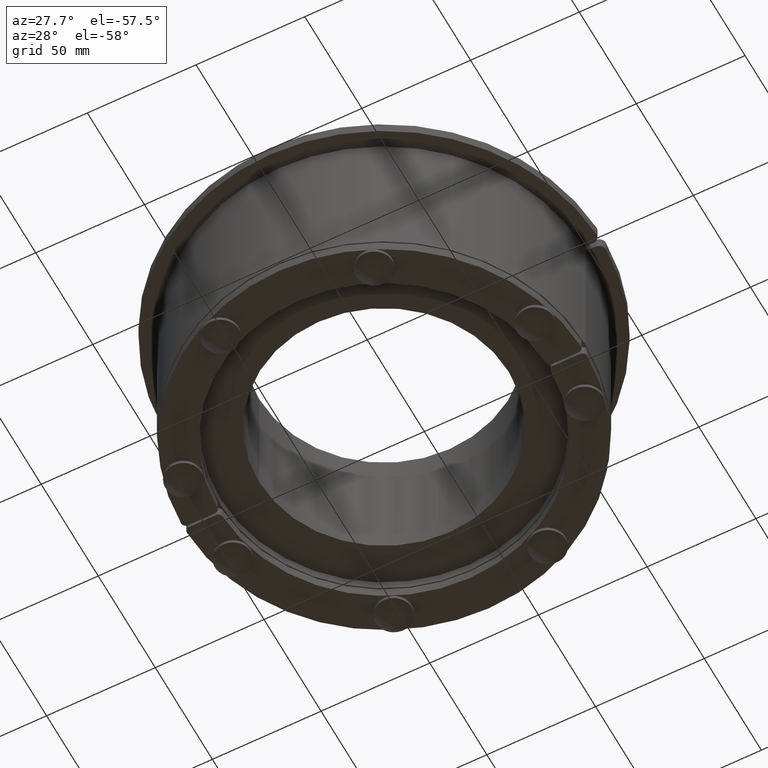
[diagram: clean part render]
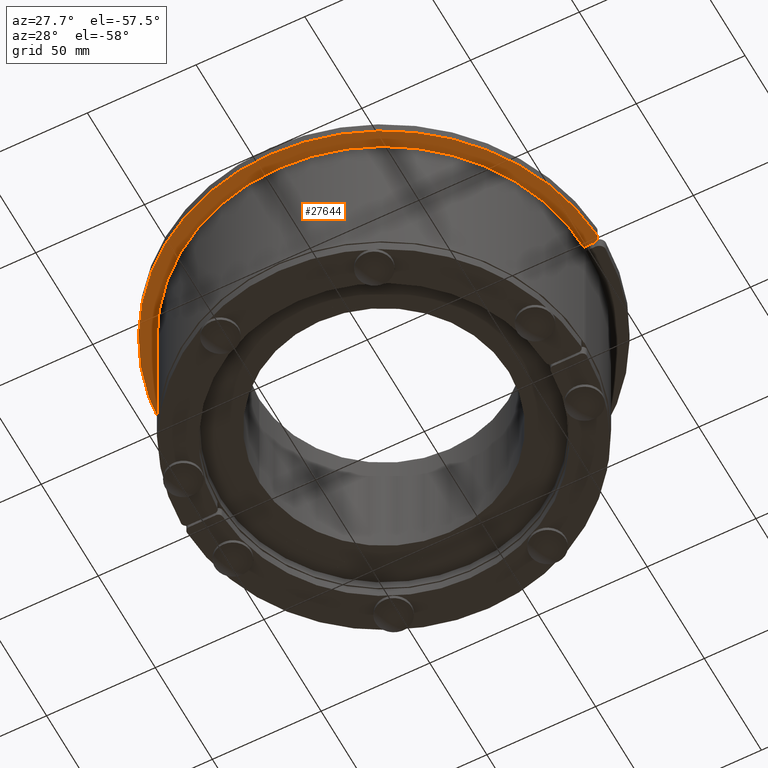
[diagram: same view with one face highlighted and labeled with its STEP entity id]
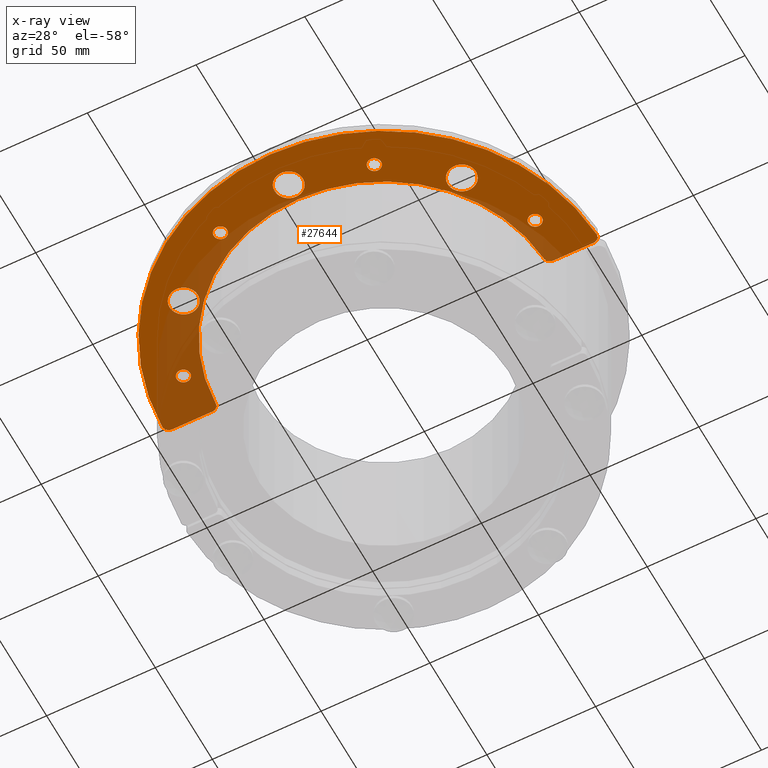
[diagram: x-ray of the same camera — body ghosted, the highlighted face saturated]
A machine part, auxiliary view. The second image highlights one B-rep face of the part: STEP entity #27644.
The next image is the same camera in x-ray: the body ghosted, the highlighted face saturated — about 25% of this face is hidden behind the body in this view.
In plain terms, the highlighted planar face has unit normal (-0, -0, 1).
Its self-contained STEP definition (entity closure, byte-faithful):
#27120=CARTESIAN_POINT('',(6.499999999999998,83.500000000000014,-5.0));
#27121=VERTEX_POINT('',#27120);
#27122=CARTESIAN_POINT('',(-2.185478E-015,83.500000000000014,-5.0));
#27123=DIRECTION('',(0.0,0.0,1.0));
#27124=DIRECTION('',(-1.0,0.0,0.0));
#27125=AXIS2_PLACEMENT_3D('',#27122,#27123,#27124);
#27126=CIRCLE('',#27125,6.5);
#27127=EDGE_CURVE('',#27121,#27121,#27126,.T.);
#27148=CARTESIAN_POINT('',(-57.464711000434683,53.672765408826024,-5.0));
#27149=VERTEX_POINT('',#27148);
#27150=CARTESIAN_POINT('',(-63.96471100043469,53.672765408826024,-5.0));
#27151=DIRECTION('',(0.0,0.0,1.0));
#27152=DIRECTION('',(-1.0,0.0,0.0));
#27153=AXIS2_PLACEMENT_3D('',#27150,#27151,#27152);
#27154=CIRCLE('',#27153,6.5);
#27155=EDGE_CURVE('',#27149,#27149,#27154,.T.);
#27176=CARTESIAN_POINT('',(70.464711000434662,53.672765408826052,-5.0));
#27177=VERTEX_POINT('',#27176);
#27178=CARTESIAN_POINT('',(63.964711000434662,53.672765408826052,-5.0));
#27179=DIRECTION('',(0.0,0.0,1.0));
#27180=DIRECTION('',(-1.0,0.0,0.0));
#27181=AXIS2_PLACEMENT_3D('',#27178,#27179,#27180);
#27182=CIRCLE('',#27181,6.5);
#27183=EDGE_CURVE('',#27177,#27177,#27182,.T.);
#27204=CARTESIAN_POINT('',(-99.914938846914453,4.123711340206175,-5.0));
#27205=VERTEX_POINT('',#27204);
#27206=CARTESIAN_POINT('',(-96.917490681507005,0.999999999999988,-5.0));
#27207=VERTEX_POINT('',#27206);
#27208=CARTESIAN_POINT('',(-96.917490681507005,3.999999999999989,-5.0));
#27209=DIRECTION('',(0.0,0.0,1.0));
#27210=DIRECTION('',(-0.721539019527727,-0.692373774271503,0.0));
#27211=AXIS2_PLACEMENT_3D('',#27208,#27209,#27210);
#27212=CIRCLE('',#27211,3.0);
#27213=EDGE_CURVE('',#27205,#27207,#27212,.T.);
#27256=CARTESIAN_POINT('',(99.914938846914453,4.12371134020617,-5.0));
#27257=VERTEX_POINT('',#27256);
#27264=CARTESIAN_POINT('',(0.0,0.0,-5.0));
#27265=DIRECTION('',(0.0,0.0,-1.0));
#27266=DIRECTION('',(-0.999949998749938,-0.01,0.0));
#27267=AXIS2_PLACEMENT_3D('',#27264,#27265,#27266);
#27268=CIRCLE('',#27267,100.0);
#27269=EDGE_CURVE('',#27205,#27257,#27268,.T.);
#27392=CARTESIAN_POINT('',(-78.398022934255181,0.99999999999999,-5.0));
#27393=VERTEX_POINT('',#27392);
#27394=CARTESIAN_POINT('',(-75.401920146958815,3.84713375796176,-5.0));
#27395=VERTEX_POINT('',#27394);
#27396=CARTESIAN_POINT('',(-78.398022934255181,3.999999999999974,-5.0));
#27397=DIRECTION('',(0.0,0.0,1.0));
#27398=DIRECTION('',(0.688855785338001,-0.724898411507686,0.0));
#27399=AXIS2_PLACEMENT_3D('',#27396,#27397,#27398);
#27400=CIRCLE('',#27399,3.0);
#27401=EDGE_CURVE('',#27393,#27395,#27400,.T.);
#27425=CARTESIAN_POINT('',(75.401920146958801,3.847133757961786,-5.0));
#27426=VERTEX_POINT('',#27425);
#27427=CARTESIAN_POINT('',(0.0,0.0,-5.0));
#27428=DIRECTION('',(0.0,0.0,1.0));
#27429=DIRECTION('',(0.999912280701586,0.013245033112583,0.0));
#27430=AXIS2_PLACEMENT_3D('',#27427,#27428,#27429);
#27431=CIRCLE('',#27430,75.500000000000014);
#27432=EDGE_CURVE('',#27426,#27395,#27431,.T.);
#27449=CARTESIAN_POINT('',(78.398022934255181,1.000000000000002,-5.0));
#27450=VERTEX_POINT('',#27449);
#27451=CARTESIAN_POINT('',(78.398022934255181,4.000000000000003,-5.0));
#27452=DIRECTION('',(0.0,0.0,1.0));
#27453=DIRECTION('',(-0.688855785337999,-0.724898411507688,0.0));
#27454=AXIS2_PLACEMENT_3D('',#27451,#27452,#27453);
#27455=CIRCLE('',#27454,3.0);
#27456=EDGE_CURVE('',#27426,#27450,#27455,.T.);
#27474=CARTESIAN_POINT('',(96.917490681507005,1.000000000000002,-5.0));
#27475=VERTEX_POINT('',#27474);
#27476=CARTESIAN_POINT('',(96.917490681507005,3.999999999999984,-5.0));
#27477=DIRECTION('',(0.0,0.0,1.0));
#27478=DIRECTION('',(0.721539019527729,-0.692373774271501,0.0));
#27479=AXIS2_PLACEMENT_3D('',#27476,#27477,#27478);
#27480=CIRCLE('',#27479,3.0);
#27481=EDGE_CURVE('',#27475,#27257,#27480,.T.);
#27502=CARTESIAN_POINT('',(32.294279420783582,75.903277164319448,-5.0));
#27503=VERTEX_POINT('',#27502);
#27504=CARTESIAN_POINT('',(35.394279420783576,75.903277164319448,-5.0));
#27505=DIRECTION('',(0.0,0.0,1.0));
#27506=DIRECTION('',(-1.0,0.0,0.0));
#27507=AXIS2_PLACEMENT_3D('',#27504,#27505,#27506);
#27508=CIRCLE('',#27507,3.100000000000001);
#27509=EDGE_CURVE('',#27503,#27503,#27508,.T.);
#27522=CARTESIAN_POINT('',(77.796287951709488,21.676095027336117,-5.0));
#27523=VERTEX_POINT('',#27522);
#27524=CARTESIAN_POINT('',(80.896287951709496,21.676095027336117,-5.0));
#27525=DIRECTION('',(0.0,0.0,1.0));
#27526=DIRECTION('',(-1.0,0.0,0.0));
#27527=AXIS2_PLACEMENT_3D('',#27524,#27525,#27526);
#27528=CIRCLE('',#27527,3.100000000000001);
#27529=EDGE_CURVE('',#27523,#27523,#27528,.T.);
#27542=CARTESIAN_POINT('',(-83.99628795170949,21.676095027336125,-5.0));
#27543=VERTEX_POINT('',#27542);
#27544=CARTESIAN_POINT('',(-80.896287951709496,21.676095027336125,-5.0));
#27545=DIRECTION('',(0.0,0.0,1.0));
#27546=DIRECTION('',(-1.0,0.0,0.0));
#27547=AXIS2_PLACEMENT_3D('',#27544,#27545,#27546);
#27548=CIRCLE('',#27547,3.100000000000001);
#27549=EDGE_CURVE('',#27543,#27543,#27548,.T.);
#27562=CARTESIAN_POINT('',(-38.494279420783577,75.903277164319448,-5.0));
#27563=VERTEX_POINT('',#27562);
#27564=CARTESIAN_POINT('',(-35.394279420783576,75.903277164319448,-5.0));
#27565=DIRECTION('',(0.0,0.0,1.0));
#27566=DIRECTION('',(-1.0,0.0,0.0));
#27567=AXIS2_PLACEMENT_3D('',#27564,#27565,#27566);
#27568=CIRCLE('',#27567,3.100000000000001);
#27569=EDGE_CURVE('',#27563,#27563,#27568,.T.);
#27580=CARTESIAN_POINT('',(96.917490681507019,1.000000000000002,-5.0));
#27581=DIRECTION('',(-1.0,0.0,0.0));
#27582=VECTOR('',#27581,18.519467747251838);
#27583=LINE('',#27580,#27582);
#27584=EDGE_CURVE('',#27475,#27450,#27583,.T.);
#27597=CARTESIAN_POINT('',(-78.398022934255181,0.99999999999999,-5.0));
#27598=DIRECTION('',(-1.0,0.0,0.0));
#27599=VECTOR('',#27598,18.519467747251824);
#27600=LINE('',#27597,#27599);
#27601=EDGE_CURVE('',#27393,#27207,#27600,.T.);
#27608=CARTESIAN_POINT('',(6.668364E-014,51.354258588604424,-5.0));
#27609=DIRECTION('',(0.0,0.0,1.0));
#27610=DIRECTION('',(1.0,0.0,0.0));
#27611=AXIS2_PLACEMENT_3D('',#27608,#27609,#27610);
#27612=PLANE('',#27611);
#27613=ORIENTED_EDGE('',*,*,#27213,.F.);
#27614=ORIENTED_EDGE('',*,*,#27269,.T.);
#27615=ORIENTED_EDGE('',*,*,#27481,.F.);
#27616=ORIENTED_EDGE('',*,*,#27584,.T.);
#27617=ORIENTED_EDGE('',*,*,#27456,.F.);
#27618=ORIENTED_EDGE('',*,*,#27432,.T.);
#27619=ORIENTED_EDGE('',*,*,#27401,.F.);
#27620=ORIENTED_EDGE('',*,*,#27601,.T.);
#27621=EDGE_LOOP('',(#27613,#27614,#27615,#27616,#27617,#27618,#27619,#27620));
#27622=FACE_OUTER_BOUND('',#27621,.T.);
#27623=ORIENTED_EDGE('',*,*,#27127,.T.);
#27624=EDGE_LOOP('',(#27623));
#27625=FACE_BOUND('',#27624,.T.);
#27626=ORIENTED_EDGE('',*,*,#27155,.T.);
#27627=EDGE_LOOP('',(#27626));
#27628=FACE_BOUND('',#27627,.T.);
#27629=ORIENTED_EDGE('',*,*,#27183,.T.);
#27630=EDGE_LOOP('',(#27629));
#27631=FACE_BOUND('',#27630,.T.);
#27632=ORIENTED_EDGE('',*,*,#27509,.T.);
#27633=EDGE_LOOP('',(#27632));
#27634=FACE_BOUND('',#27633,.T.);
#27635=ORIENTED_EDGE('',*,*,#27529,.T.);
#27636=EDGE_LOOP('',(#27635));
#27637=FACE_BOUND('',#27636,.T.);
#27638=ORIENTED_EDGE('',*,*,#27549,.T.);
#27639=EDGE_LOOP('',(#27638));
#27640=FACE_BOUND('',#27639,.T.);
#27641=ORIENTED_EDGE('',*,*,#27569,.T.);
#27642=EDGE_LOOP('',(#27641));
#27643=FACE_BOUND('',#27642,.T.);
#27644=ADVANCED_FACE('',(#27622,#27625,#27628,#27631,#27634,#27637,#27640,#27643),#27612,.F.);